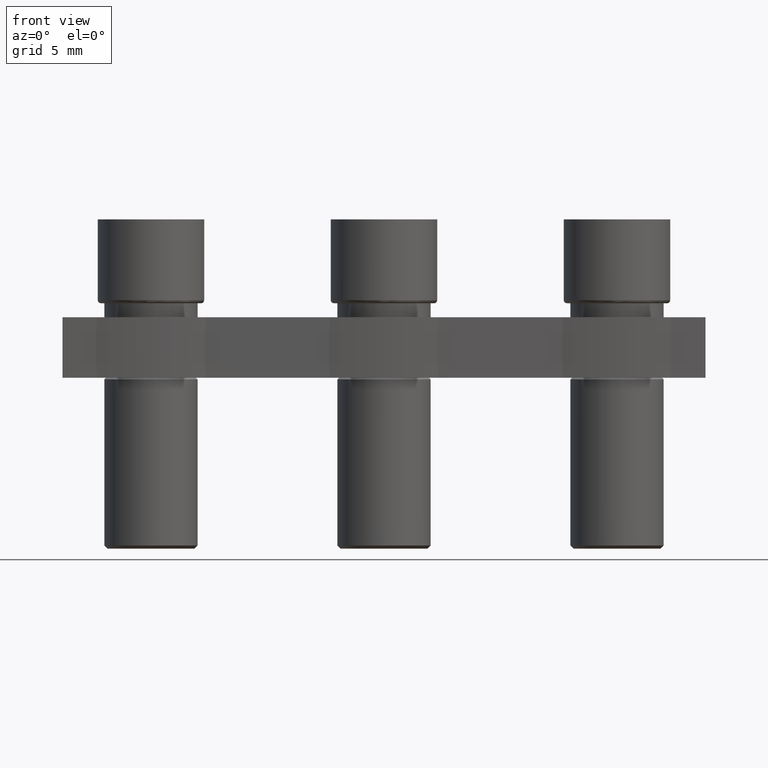
[diagram: clean part render]
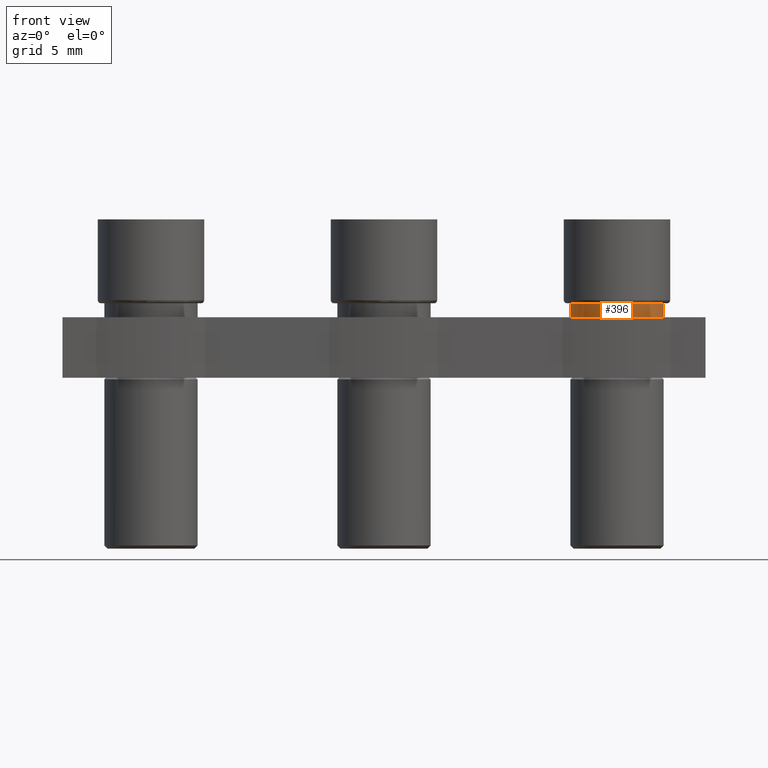
[diagram: same view with one face highlighted and labeled with its STEP entity id]
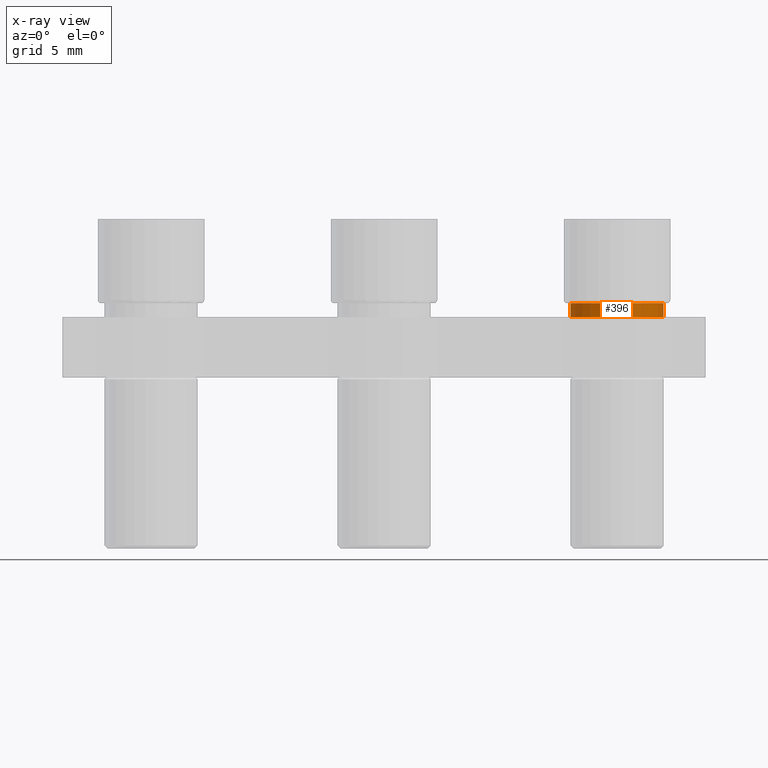
[diagram: x-ray of the same camera — body ghosted, the highlighted face saturated]
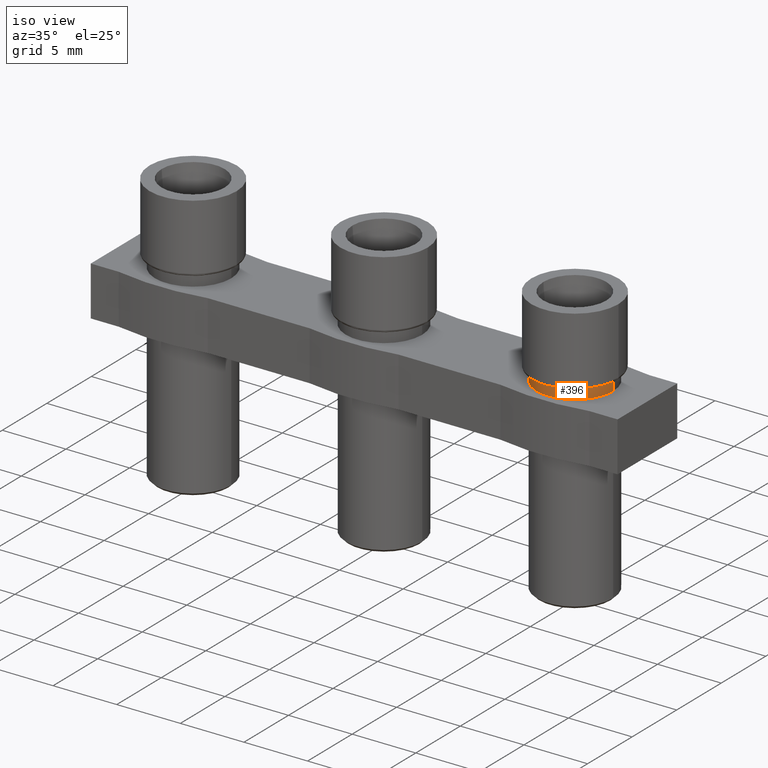
[diagram: same view with one face highlighted and labeled with its STEP entity id]
A machine part, front view. The second image highlights one B-rep face of the part: STEP entity #396.
The next image is the same camera in x-ray: the body ghosted, the highlighted face saturated — about 0% of this face is hidden behind the body in this view.
A second angle (iso view) of the same face is appended — the face is thin or edge-on in the first view.
In plain terms, the highlighted cylindrical surface (partial cylindrical patch) has radius 3 mm, axis along (0, 0, -1).
Its self-contained STEP definition (entity closure, byte-faithful):
#88 = EDGE_CURVE ( 'NONE', #4270, #4302, #5099, .T. ) ;
#111 = EDGE_CURVE ( 'NONE', #4341, #4268, #5098, .T. ) ;
#195 = EDGE_CURVE ( 'NONE', #4268, #4270, #3889, .T. ) ;
#196 = EDGE_CURVE ( 'NONE', #4341, #4302, #3873, .T. ) ;
#396 = ADVANCED_FACE ( 'NONE', ( #2251 ), #2247, .T. ) ;
#583 = ORIENTED_EDGE ( 'NONE', *, *, #88, .F. ) ;
#597 = ORIENTED_EDGE ( 'NONE', *, *, #195, .F. ) ;
#630 = ORIENTED_EDGE ( 'NONE', *, *, #196, .T. ) ;
#637 = ORIENTED_EDGE ( 'NONE', *, *, #111, .F. ) ;
#698 = EDGE_LOOP ( 'NONE', ( #637, #630, #583, #597 ) ) ;
#2212 = DIRECTION ( 'NONE',  ( 1.000000000000000000, 2.491358183583695200E-016, 0.0000000000000000000 ) ) ;
#2242 = CARTESIAN_POINT ( 'NONE',  ( 30.00000000000165200, 6.243429516965604400E-014, 0.0000000000000000000 ) ) ;
#2247 = CYLINDRICAL_SURFACE ( 'NONE', #4871, 3.000000000000002700 ) ;
#2251 = FACE_OUTER_BOUND ( 'NONE', #698, .T. ) ;
#2253 = DIRECTION ( 'NONE',  ( 0.0000000000000000000, 0.0000000000000000000, -1.000000000000000000 ) ) ;
#2657 = CARTESIAN_POINT ( 'NONE',  ( 33.00000000000165600, 6.318170262473114700E-014, -0.9000000000000014700 ) ) ;
#2667 = CARTESIAN_POINT ( 'NONE',  ( 27.00000000000165200, 6.131949367483672300E-014, -0.9000000000000014700 ) ) ;
#2684 = CARTESIAN_POINT ( 'NONE',  ( 33.00000000000165600, 6.318170262473114700E-014, 0.0000000000000000000 ) ) ;
#3596 = CARTESIAN_POINT ( 'NONE',  ( 30.00000000000165200, 6.243429516965604400E-014, 0.0000000000000000000 ) ) ;
#3599 = DIRECTION ( 'NONE',  ( -0.0000000000000000000, -0.0000000000000000000, 1.000000000000000000 ) ) ;
#3622 = DIRECTION ( 'NONE',  ( 1.000000000000000000, 2.491358183583695200E-016, 0.0000000000000000000 ) ) ;
#3856 = CARTESIAN_POINT ( 'NONE',  ( 33.00000000000165600, 6.318170262473114700E-014, 0.0000000000000000000 ) ) ;
#3865 = DIRECTION ( 'NONE',  ( 0.0000000000000000000, 0.0000000000000000000, -1.000000000000000000 ) ) ;
#3873 = LINE ( 'NONE', #3896, #5218 ) ;
#3874 = DIRECTION ( 'NONE',  ( 0.0000000000000000000, 0.0000000000000000000, -1.000000000000000000 ) ) ;
#3889 = LINE ( 'NONE', #3856, #5205 ) ;
#3896 = CARTESIAN_POINT ( 'NONE',  ( 27.00000000000165200, 6.131949367483672300E-014, 0.0000000000000000000 ) ) ;
#4268 = VERTEX_POINT ( 'NONE', #2684 ) ;
#4270 = VERTEX_POINT ( 'NONE', #2657 ) ;
#4302 = VERTEX_POINT ( 'NONE', #2667 ) ;
#4341 = VERTEX_POINT ( 'NONE', #4708 ) ;
#4486 = CARTESIAN_POINT ( 'NONE',  ( 30.00000000000165200, 6.243429516965604400E-014, -0.9000000000000014700 ) ) ;
#4516 = DIRECTION ( 'NONE',  ( 1.000000000000000000, 2.491358183583695200E-016, 0.0000000000000000000 ) ) ;
#4530 = DIRECTION ( 'NONE',  ( 0.0000000000000000000, 0.0000000000000000000, -1.000000000000000000 ) ) ;
#4708 = CARTESIAN_POINT ( 'NONE',  ( 27.00000000000165200, 6.131949367483672300E-014, 0.0000000000000000000 ) ) ;
#4871 = AXIS2_PLACEMENT_3D ( 'NONE', #2242, #2253, #2212 ) ;
#5081 = AXIS2_PLACEMENT_3D ( 'NONE', #4486, #4530, #4516 ) ;
#5098 = CIRCLE ( 'NONE', #5100, 3.000000000000002700 ) ;
#5099 = CIRCLE ( 'NONE', #5081, 3.000000000000002700 ) ;
#5100 = AXIS2_PLACEMENT_3D ( 'NONE', #3596, #3599, #3622 ) ;
#5205 = VECTOR ( 'NONE', #3865, 1000.000000000000000 ) ;
#5218 = VECTOR ( 'NONE', #3874, 1000.000000000000000 ) ;